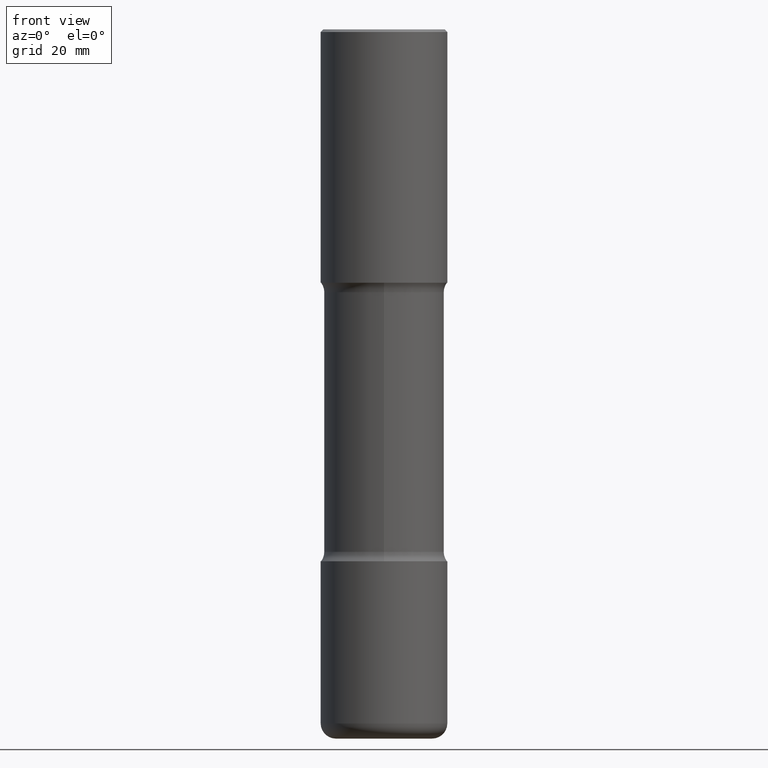
[diagram: clean part render]
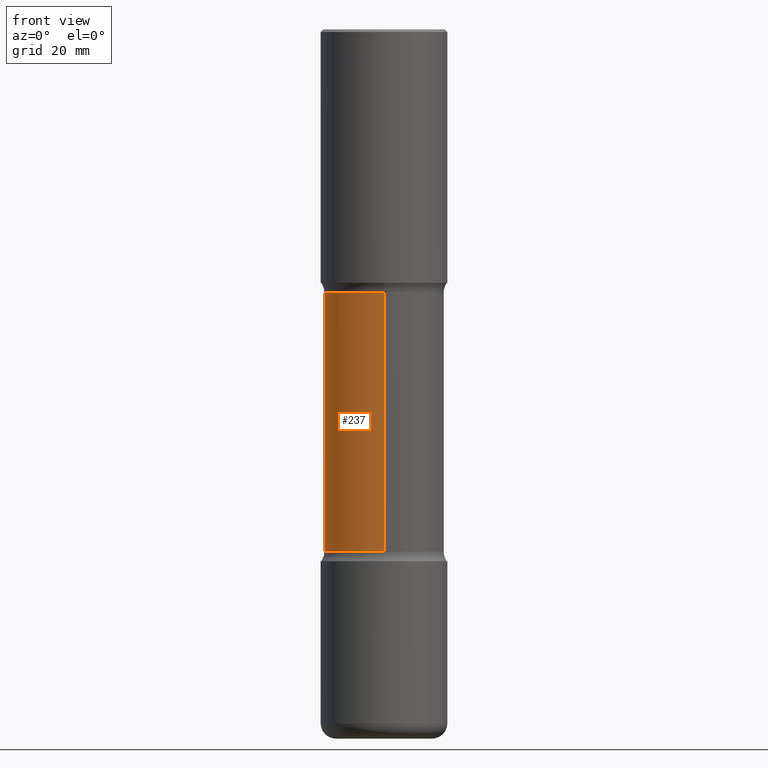
[diagram: same view with one face highlighted and labeled with its STEP entity id]
A machine part, front view. The second image highlights one B-rep face of the part: STEP entity #237.
In plain terms, the highlighted cylindrical surface (partial cylindrical patch) has radius 11.8745 mm, axis along (0, -0, -1).
Its self-contained STEP definition (entity closure, byte-faithful):
#17 = VERTEX_POINT ( 'NONE', #548 ) ;
#57 = AXIS2_PLACEMENT_3D ( 'NONE', #380, #547, #123 ) ;
#123 = DIRECTION ( 'NONE',  ( 6.982962677686265133E-15, 1.000000000000000000, -3.506115072082475215E-15 ) ) ;
#146 = LINE ( 'NONE', #181, #382 ) ;
#163 = EDGE_CURVE ( 'NONE', #17, #414, #223, .T. ) ;
#165 = VERTEX_POINT ( 'NONE', #305 ) ;
#173 = EDGE_LOOP ( 'NONE', ( #293, #545, #202, #217 ) ) ;
#181 = CARTESIAN_POINT ( 'NONE',  ( -3.207282813958054974E-15, -0.4675000000000190670, -5.511799999999999145 ) ) ;
#186 = AXIS2_PLACEMENT_3D ( 'NONE', #287, #334, #508 ) ;
#194 = DIRECTION ( 'NONE',  ( 2.569765813720951550E-29, -3.313480949505536246E-15, -1.000000000000000000 ) ) ;
#202 = ORIENTED_EDGE ( 'NONE', *, *, #163, .T. ) ;
#217 = ORIENTED_EDGE ( 'NONE', *, *, #464, .F. ) ;
#223 = LINE ( 'NONE', #303, #288 ) ;
#230 = DIRECTION ( 'NONE',  ( 2.569765813720951550E-29, -3.313480949505536246E-15, -1.000000000000000000 ) ) ;
#233 = CIRCLE ( 'NONE', #57, 0.4675000000000001932 ) ;
#237 = ADVANCED_FACE ( 'NONE', ( #447 ), #359, .T. ) ;
#287 = CARTESIAN_POINT ( 'NONE',  ( 9.917551605176555751E-29, -1.418612834227874970E-14, -4.059268949423747053 ) ) ;
#288 = VECTOR ( 'NONE', #230, 39.37007874015748143 ) ;
#290 = VERTEX_POINT ( 'NONE', #417 ) ;
#293 = ORIENTED_EDGE ( 'NONE', *, *, #527, .F. ) ;
#303 = CARTESIAN_POINT ( 'NONE',  ( 3.264535051818466476E-15, 0.4674999999999810973, -5.511800000000000921 ) ) ;
#305 = CARTESIAN_POINT ( 'NONE',  ( -3.291838451780682059E-15, -0.4675000000000077982, -2.043031050576252117 ) ) ;
#314 = AXIS2_PLACEMENT_3D ( 'NONE', #375, #194, #530 ) ;
#334 = DIRECTION ( 'NONE',  ( 2.569765813720951550E-29, -3.313480949505536246E-15, -1.000000000000000000 ) ) ;
#337 = CARTESIAN_POINT ( 'NONE',  ( 3.264535051818428216E-15, 0.4674999999999857048, -4.059268949423748829 ) ) ;
#343 = DIRECTION ( 'NONE',  ( 2.569765813720951550E-29, -3.313480949505536246E-15, -1.000000000000000000 ) ) ;
#359 = CYLINDRICAL_SURFACE ( 'NONE', #314, 0.4675000000000000822 ) ;
#375 = CARTESIAN_POINT ( 'NONE',  ( 1.365021624231558916E-28, -1.899906230692842285E-14, -5.511800000000000033 ) ) ;
#380 = CARTESIAN_POINT ( 'NONE',  ( 4.736292380389705471E-29, -7.505362474776508302E-15, -2.043031050576253893 ) ) ;
#382 = VECTOR ( 'NONE', #343, 39.37007874015748143 ) ;
#391 = CIRCLE ( 'NONE', #186, 0.4674999999999999156 ) ;
#414 = VERTEX_POINT ( 'NONE', #337 ) ;
#417 = CARTESIAN_POINT ( 'NONE',  ( -3.291838451780624078E-15, -0.4675000000000141265, -4.059268949423745276 ) ) ;
#447 = FACE_OUTER_BOUND ( 'NONE', #173, .T. ) ;
#464 = EDGE_CURVE ( 'NONE', #290, #414, #391, .T. ) ;
#508 = DIRECTION ( 'NONE',  ( 6.982962677686266711E-15, 1.000000000000000000, -3.506115072082477581E-15 ) ) ;
#518 = EDGE_CURVE ( 'NONE', #165, #17, #233, .T. ) ;
#527 = EDGE_CURVE ( 'NONE', #165, #290, #146, .T. ) ;
#530 = DIRECTION ( 'NONE',  ( 6.982962677686265922E-15, 1.000000000000000000, -2.337410048054984002E-15 ) ) ;
#545 = ORIENTED_EDGE ( 'NONE', *, *, #518, .T. ) ;
#547 = DIRECTION ( 'NONE',  ( 2.569765813720951550E-29, -3.313480949505536246E-15, -1.000000000000000000 ) ) ;
#548 = CARTESIAN_POINT ( 'NONE',  ( 3.264535051818378123E-15, 0.4674999999999926992, -2.043031050576255669 ) ) ;